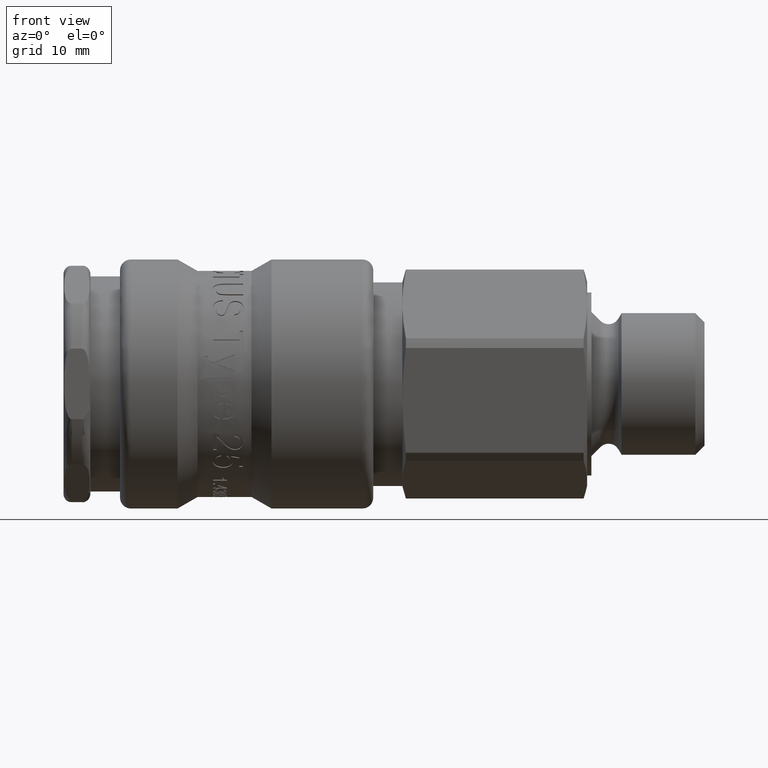
[diagram: clean part render]
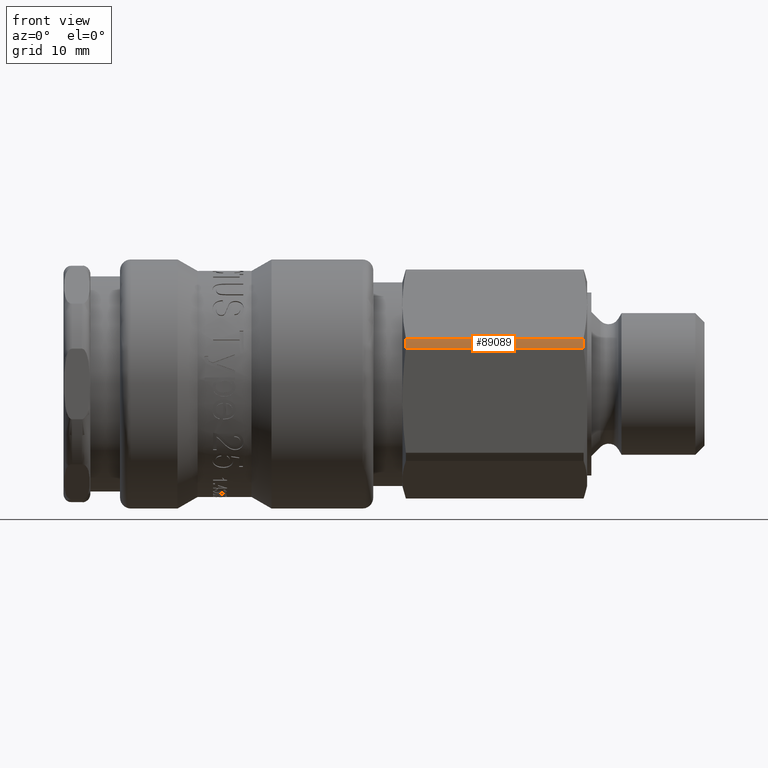
[diagram: same view with one face highlighted and labeled with its STEP entity id]
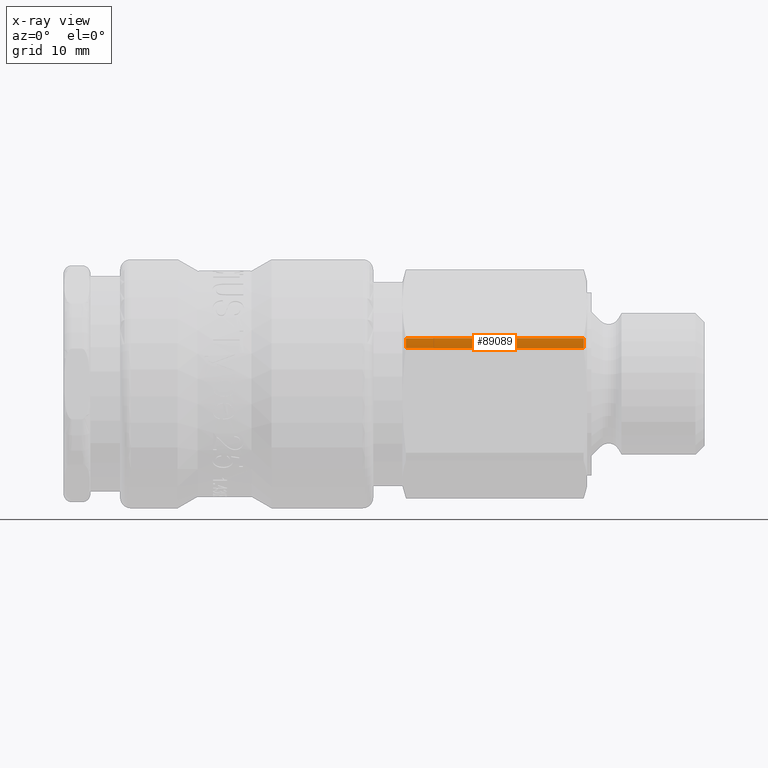
[diagram: x-ray of the same camera — body ghosted, the highlighted face saturated]
A machine part, front view. The second image highlights one B-rep face of the part: STEP entity #89089.
The next image is the same camera in x-ray: the body ghosted, the highlighted face saturated — about 0% of this face is hidden behind the body in this view.
In plain terms, the highlighted cylindrical surface (partial cylindrical patch) has radius 10.7 mm, axis along (-1, 0, 0).
Its self-contained STEP definition (entity closure, byte-faithful):
#88744=CARTESIAN_POINT('',(31.778237760728139,-9.822234946283716,4.244255018257385));
#88745=VERTEX_POINT('',#88744);
#88759=CARTESIAN_POINT('',(48.278460969082658,-9.822234946283714,4.244255018257380));
#88760=VERTEX_POINT('',#88759);
#88761=CARTESIAN_POINT('',(48.278460969082658,-9.822234946283718,4.244255018257380));
#88762=DIRECTION('',(-1.0,0.0,0.0));
#88763=VECTOR('',#88762,16.500223208354519);
#88764=LINE('',#88761,#88763);
#88765=EDGE_CURVE('',#88760,#88745,#88764,.T.);
#88788=CARTESIAN_POINT('',(48.278460969082658,-10.166986955290724,3.335022676226993));
#88789=VERTEX_POINT('',#88788);
#88805=CARTESIAN_POINT('',(31.778237760728139,-10.166986955290726,3.335022676226993));
#88806=VERTEX_POINT('',#88805);
#88807=CARTESIAN_POINT('',(31.778237760728139,-10.166986955290724,3.335022676226998));
#88808=DIRECTION('',(1.0,0.0,0.0));
#88809=VECTOR('',#88808,16.500223208354519);
#88810=LINE('',#88807,#88809);
#88811=EDGE_CURVE('',#88806,#88789,#88810,.T.);
#88978=CARTESIAN_POINT('',(31.778237760728139,0.0,0.0));
#88979=DIRECTION('',(-1.0,0.0,0.0));
#88980=DIRECTION('',(0.0,0.632500740216807,-0.774559754715665));
#88981=AXIS2_PLACEMENT_3D('',#88978,#88979,#88980);
#88982=CIRCLE('',#88981,10.700000000000001);
#88983=EDGE_CURVE('',#88806,#88745,#88982,.T.);
#89072=CARTESIAN_POINT('',(40.028349364905402,0.0,0.0));
#89073=DIRECTION('',(-1.0,0.0,0.0));
#89074=DIRECTION('',(0.0,0.632500740216807,-0.774559754715665));
#89075=AXIS2_PLACEMENT_3D('',#89072,#89073,#89074);
#89076=CYLINDRICAL_SURFACE('',#89075,10.700000000000001);
#89077=ORIENTED_EDGE('',*,*,#88765,.T.);
#89078=ORIENTED_EDGE('',*,*,#88983,.F.);
#89079=ORIENTED_EDGE('',*,*,#88811,.T.);
#89080=CARTESIAN_POINT('',(48.278460969082666,0.0,0.0));
#89081=DIRECTION('',(-1.0,0.0,0.0));
#89082=DIRECTION('',(0.0,0.632500740216807,-0.774559754715665));
#89083=AXIS2_PLACEMENT_3D('',#89080,#89081,#89082);
#89084=CIRCLE('',#89083,10.700000000000001);
#89085=EDGE_CURVE('',#88789,#88760,#89084,.T.);
#89086=ORIENTED_EDGE('',*,*,#89085,.T.);
#89087=EDGE_LOOP('',(#89077,#89078,#89079,#89086));
#89088=FACE_OUTER_BOUND('',#89087,.T.);
#89089=ADVANCED_FACE('',(#89088),#89076,.T.);